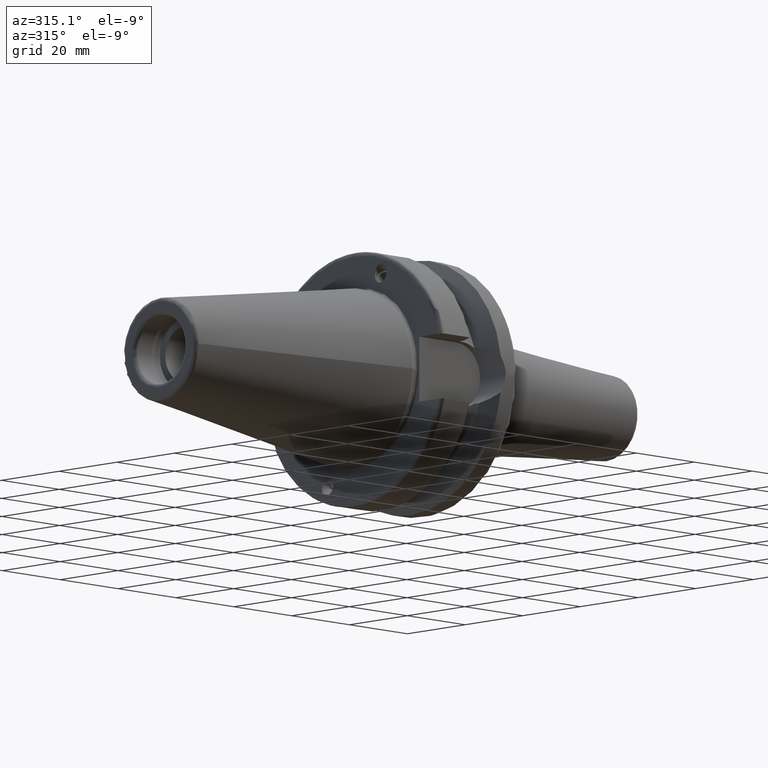
[diagram: clean part render]
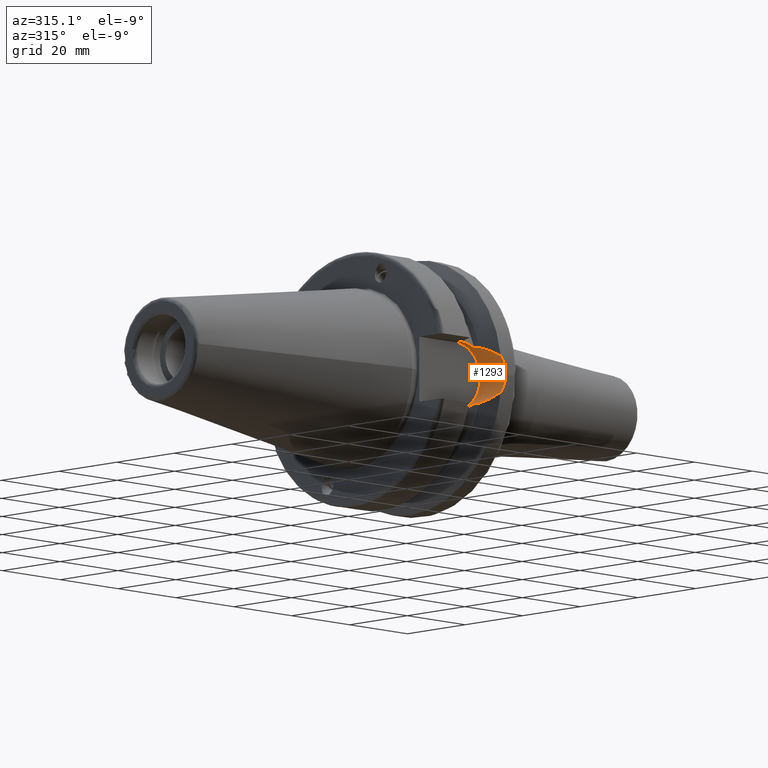
[diagram: same view with one face highlighted and labeled with its STEP entity id]
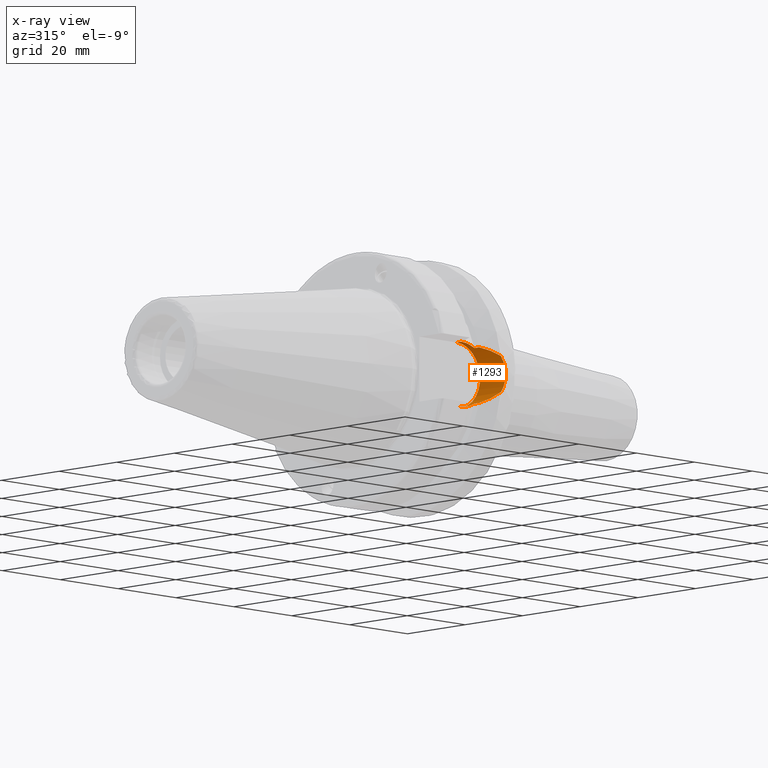
[diagram: x-ray of the same camera — body ghosted, the highlighted face saturated]
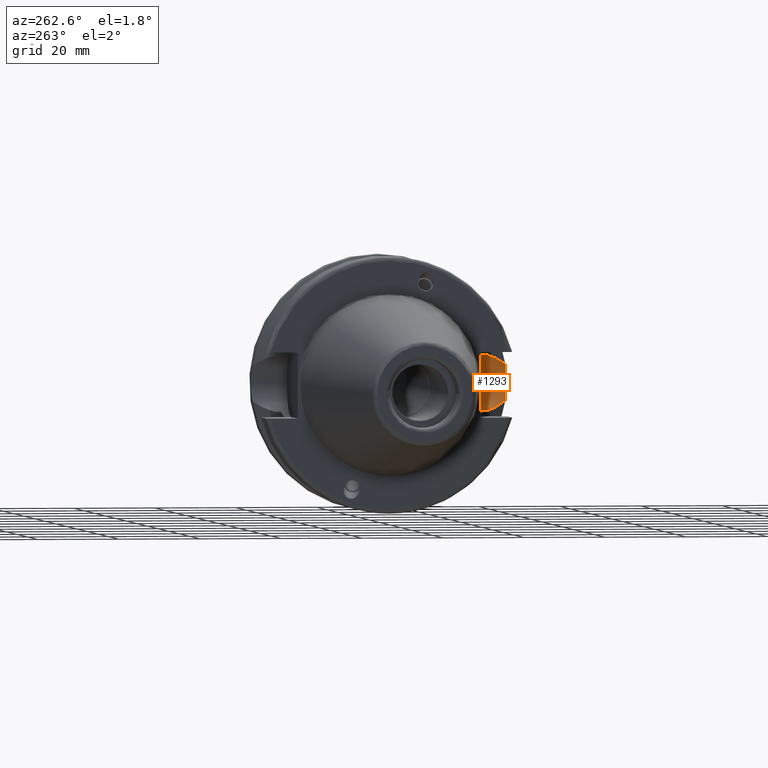
[diagram: same view with one face highlighted and labeled with its STEP entity id]
A machine part, auxiliary view. The second image highlights one B-rep face of the part: STEP entity #1293.
The next image is the same camera in x-ray: the body ghosted, the highlighted face saturated — about 0% of this face is hidden behind the body in this view.
A second angle (auxiliary view) of the same face is appended — the face is thin or edge-on in the first view.
In plain terms, the highlighted cylindrical surface (edge-blend (fillet) strip) has radius 8.05 mm, axis along (0, 1, 0).
Its self-contained STEP definition (entity closure, byte-faithful):
#30=B_SPLINE_CURVE_WITH_KNOTS('',3,(#2291,#2292,#2293,#2294,#2295,#2296),
 .UNSPECIFIED.,.F.,.F.,(4,2,4),(2.02525951614585,2.13846497015446,2.44402436414645),
 .UNSPECIFIED.);
#31=B_SPLINE_CURVE_WITH_KNOTS('',3,(#2300,#2301,#2302,#2303,#2304,#2305),
 .UNSPECIFIED.,.F.,.F.,(4,2,4),(3.12975744792547,3.62699288756974,3.70848737461386),
 .UNSPECIFIED.);
#32=B_SPLINE_CURVE_WITH_KNOTS('',3,(#2307,#2308,#2309,#2310,#2311,#2312),
 .UNSPECIFIED.,.F.,.F.,(4,2,4),(1.21877751840372,1.52344857393281,1.67526011710938),
 .UNSPECIFIED.);
#33=B_SPLINE_CURVE_WITH_KNOTS('',3,(#2314,#2315,#2316,#2317,#2318,#2319),
 .UNSPECIFIED.,.F.,.F.,(4,2,4),(0.762294919698051,0.914106462874623,1.21877751840372),
 .UNSPECIFIED.);
#34=B_SPLINE_CURVE_WITH_KNOTS('',3,(#2321,#2322,#2323,#2324,#2325,#2326),
 .UNSPECIFIED.,.F.,.F.,(4,2,4),(1.46421027899559,1.54570476603972,2.04294020568399),
 .UNSPECIFIED.);
#35=B_SPLINE_CURVE_WITH_KNOTS('',3,(#2330,#2331,#2332,#2333,#2334,#2335),
 .UNSPECIFIED.,.F.,.F.,(4,2,4),(0.,0.305559393991992,0.418764848000603),
 .UNSPECIFIED.);
#114=CYLINDRICAL_SURFACE('',#1453,8.05);
#181=FACE_OUTER_BOUND('',#271,.T.);
#271=EDGE_LOOP('',(#1032,#1033,#1034,#1035,#1036,#1037,#1038,#1039,#1040,
#1041,#1042));
#353=CIRCLE('',#1454,8.05);
#422=LINE('',#2298,#490);
#423=LINE('',#2328,#491);
#424=LINE('',#2337,#492);
#425=LINE('',#2340,#493);
#490=VECTOR('',#1764,10.);
#491=VECTOR('',#1765,10.);
#492=VECTOR('',#1766,10.);
#493=VECTOR('',#1769,10.);
#591=VERTEX_POINT('',#2289);
#592=VERTEX_POINT('',#2290);
#593=VERTEX_POINT('',#2297);
#594=VERTEX_POINT('',#2299);
#595=VERTEX_POINT('',#2306);
#596=VERTEX_POINT('',#2313);
#597=VERTEX_POINT('',#2320);
#598=VERTEX_POINT('',#2327);
#599=VERTEX_POINT('',#2329);
#600=VERTEX_POINT('',#2336);
#601=VERTEX_POINT('',#2338);
#750=EDGE_CURVE('',#591,#592,#30,.T.);
#751=EDGE_CURVE('',#593,#591,#422,.T.);
#752=EDGE_CURVE('',#594,#593,#31,.T.);
#753=EDGE_CURVE('',#595,#594,#32,.T.);
#754=EDGE_CURVE('',#596,#595,#33,.T.);
#755=EDGE_CURVE('',#597,#596,#34,.T.);
#756=EDGE_CURVE('',#598,#597,#423,.T.);
#757=EDGE_CURVE('',#599,#598,#35,.T.);
#758=EDGE_CURVE('',#600,#599,#424,.T.);
#759=EDGE_CURVE('',#600,#601,#353,.T.);
#760=EDGE_CURVE('',#601,#592,#425,.T.);
#1032=ORIENTED_EDGE('',*,*,#750,.F.);
#1033=ORIENTED_EDGE('',*,*,#751,.F.);
#1034=ORIENTED_EDGE('',*,*,#752,.F.);
#1035=ORIENTED_EDGE('',*,*,#753,.F.);
#1036=ORIENTED_EDGE('',*,*,#754,.F.);
#1037=ORIENTED_EDGE('',*,*,#755,.F.);
#1038=ORIENTED_EDGE('',*,*,#756,.F.);
#1039=ORIENTED_EDGE('',*,*,#757,.F.);
#1040=ORIENTED_EDGE('',*,*,#758,.F.);
#1041=ORIENTED_EDGE('',*,*,#759,.T.);
#1042=ORIENTED_EDGE('',*,*,#760,.T.);
#1293=ADVANCED_FACE('',(#181),#114,.F.);
#1453=AXIS2_PLACEMENT_3D('',#2288,#1762,#1763);
#1454=AXIS2_PLACEMENT_3D('',#2339,#1767,#1768);
#1762=DIRECTION('center_axis',(0.,1.,0.));
#1763=DIRECTION('ref_axis',(0.,0.,1.));
#1764=DIRECTION('',(0.,1.,0.));
#1765=DIRECTION('',(0.,-1.,0.));
#1766=DIRECTION('',(0.,-1.,0.));
#1767=DIRECTION('center_axis',(0.,1.,0.));
#1768=DIRECTION('ref_axis',(0.,0.,1.));
#1769=DIRECTION('',(0.,-1.,0.));
#2288=CARTESIAN_POINT('Origin',(14.95,-22.6,0.));
#2289=CARTESIAN_POINT('',(19.1,-24.5493380766162,-6.89782574439221));
#2290=CARTESIAN_POINT('',(14.95,-24.1960224003864,-8.05));
#2291=CARTESIAN_POINT('Ctrl Pts',(19.1,-24.5493380766162,-6.89782574439221));
#2292=CARTESIAN_POINT('Ctrl Pts',(18.7625417379862,-24.492291659194,-7.10085374759973));
#2293=CARTESIAN_POINT('Ctrl Pts',(18.4072379028184,-24.4390565244262,-7.28065599998141));
#2294=CARTESIAN_POINT('Ctrl Pts',(17.0497516664971,-24.2670783971366,-7.84501312719341));
#2295=CARTESIAN_POINT('Ctrl Pts',(15.9685313133066,-24.1960224003864,-8.05));
#2296=CARTESIAN_POINT('Ctrl Pts',(14.95,-24.1960224003864,-8.05));
#2297=CARTESIAN_POINT('',(19.1,-26.201311395455,-6.89782574439221));
#2298=CARTESIAN_POINT('',(19.1,-22.6,-6.89782574439221));
#2299=CARTESIAN_POINT('',(21.6309636926618,-31.1782420264945,-4.4907932637046));
#2300=CARTESIAN_POINT('Ctrl Pts',(21.6309636926618,-31.1782420264945,-4.4907932637046));
#2301=CARTESIAN_POINT('Ctrl Pts',(20.9728756148303,-29.8797957262939,-5.46983244373115));
#2302=CARTESIAN_POINT('Ctrl Pts',(20.1784155384866,-28.3157123387484,-6.18231368976925));
#2303=CARTESIAN_POINT('Ctrl Pts',(19.3406963650697,-26.6728819297428,-6.74867108656039));
#2304=CARTESIAN_POINT('Ctrl Pts',(19.2210929544554,-26.4384736933511,-6.82497151762395));
#2305=CARTESIAN_POINT('Ctrl Pts',(19.1,-26.201311395455,-6.89782574439221));
#2306=CARTESIAN_POINT('',(23.,-31.5,-1.51248507442265E-15));
#2307=CARTESIAN_POINT('Ctrl Pts',(23.,-31.5,8.32667268468867E-16));
#2308=CARTESIAN_POINT('Ctrl Pts',(23.,-31.5,-1.01557018509698));
#2309=CARTESIAN_POINT('Ctrl Pts',(22.7961189876535,-31.445974204441,-2.09580170425552));
#2310=CARTESIAN_POINT('Ctrl Pts',(22.1796133812044,-31.2997625705024,-3.58065358198869));
#2311=CARTESIAN_POINT('Ctrl Pts',(21.92482980253,-31.2412125047166,-4.05360796141051));
#2312=CARTESIAN_POINT('Ctrl Pts',(21.6309636926618,-31.1782420264945,-4.4907932637046));
#2313=CARTESIAN_POINT('',(21.6309636926618,-31.1782420264945,4.4907932637046));
#2314=CARTESIAN_POINT('Ctrl Pts',(21.6309636926618,-31.1782420264945,4.4907932637046));
#2315=CARTESIAN_POINT('Ctrl Pts',(21.92482980253,-31.2412125047166,4.05360796141051));
#2316=CARTESIAN_POINT('Ctrl Pts',(22.1796133812044,-31.2997625705024,3.58065358198869));
#2317=CARTESIAN_POINT('Ctrl Pts',(22.7961189876535,-31.445974204441,2.09580170425552));
#2318=CARTESIAN_POINT('Ctrl Pts',(23.,-31.5,1.01557018509698));
#2319=CARTESIAN_POINT('Ctrl Pts',(23.,-31.5,-2.77555756156289E-16));
#2320=CARTESIAN_POINT('',(19.1,-26.201311395455,6.89782574439221));
#2321=CARTESIAN_POINT('Ctrl Pts',(19.1,-26.201311395455,6.89782574439221));
#2322=CARTESIAN_POINT('Ctrl Pts',(19.2210929544554,-26.4384736933511,6.82497151762395));
#2323=CARTESIAN_POINT('Ctrl Pts',(19.3406963650697,-26.6728819297428,6.74867108656039));
#2324=CARTESIAN_POINT('Ctrl Pts',(20.1784155384866,-28.3157123387484,6.18231368976925));
#2325=CARTESIAN_POINT('Ctrl Pts',(20.9728756148303,-29.8797957262939,5.46983244373115));
#2326=CARTESIAN_POINT('Ctrl Pts',(21.6309636926618,-31.1782420264945,4.4907932637046));
#2327=CARTESIAN_POINT('',(19.1,-24.5493380766162,6.89782574439221));
#2328=CARTESIAN_POINT('',(19.1,-22.6,6.89782574439221));
#2329=CARTESIAN_POINT('',(14.95,-24.1960224003864,8.05));
#2330=CARTESIAN_POINT('Ctrl Pts',(14.95,-24.1960224003864,8.05));
#2331=CARTESIAN_POINT('Ctrl Pts',(15.9685313133066,-24.1960224003864,8.05));
#2332=CARTESIAN_POINT('Ctrl Pts',(17.0497516664971,-24.2670783971366,7.84501312719341));
#2333=CARTESIAN_POINT('Ctrl Pts',(18.4072379028184,-24.4390565244262,7.28065599998141));
#2334=CARTESIAN_POINT('Ctrl Pts',(18.7625417379862,-24.492291659194,7.10085374759973));
#2335=CARTESIAN_POINT('Ctrl Pts',(19.1,-24.5493380766162,6.89782574439221));
#2336=CARTESIAN_POINT('',(14.95,-22.6,8.05));
#2337=CARTESIAN_POINT('',(14.95,-22.6,8.05));
#2338=CARTESIAN_POINT('',(14.95,-22.6,-8.05));
#2339=CARTESIAN_POINT('Origin',(14.95,-22.6,0.));
#2340=CARTESIAN_POINT('',(14.95,-22.6,-8.05));